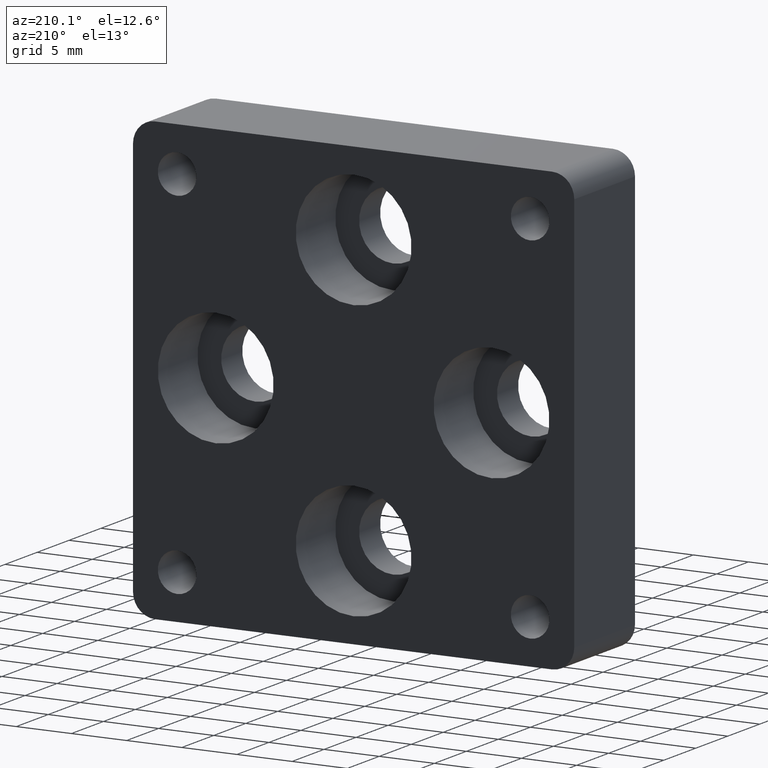
[diagram: clean part render]
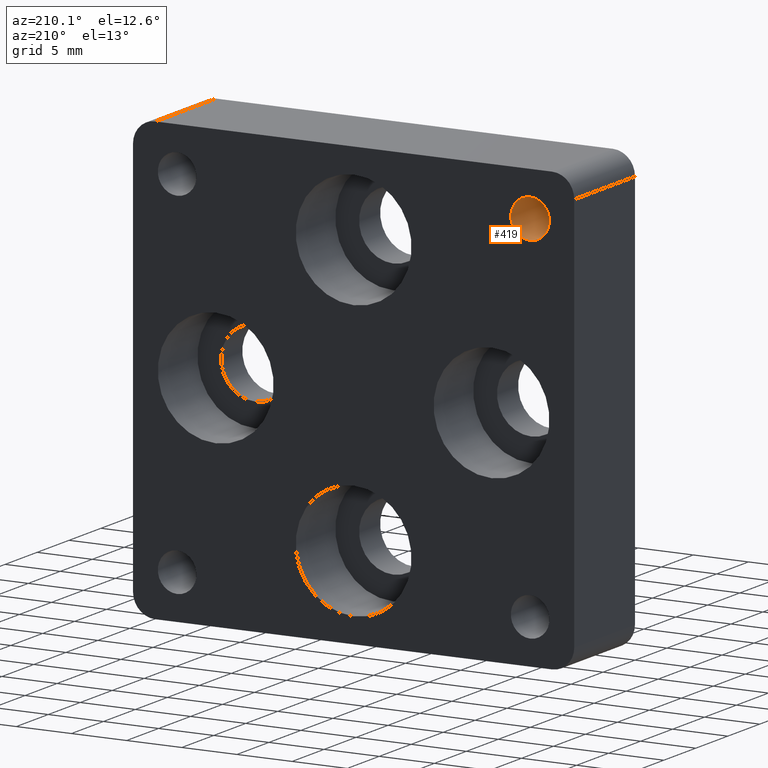
[diagram: same view with one face highlighted and labeled with its STEP entity id]
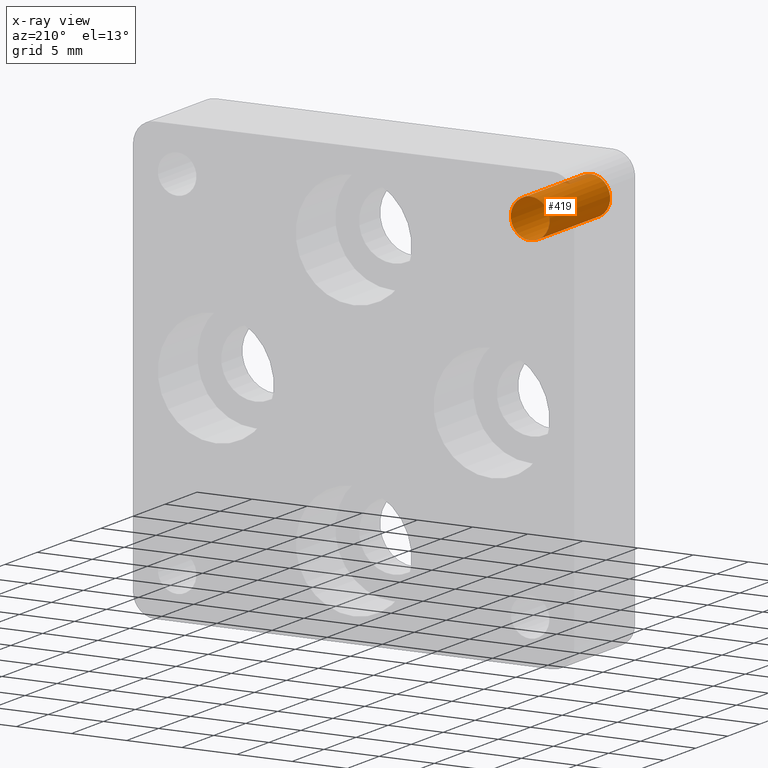
[diagram: x-ray of the same camera — body ghosted, the highlighted face saturated]
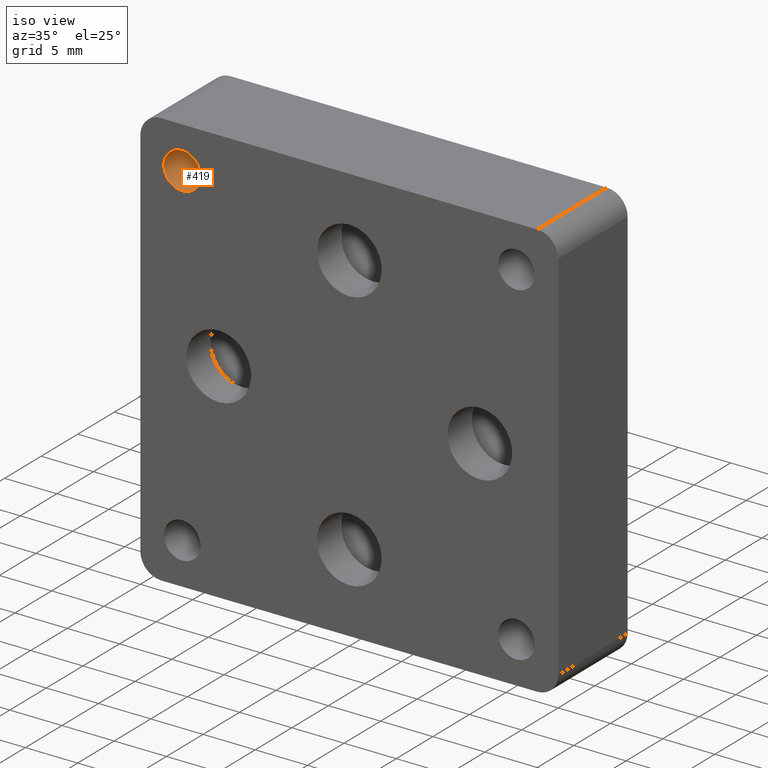
[diagram: same view with one face highlighted and labeled with its STEP entity id]
A machine part, auxiliary view. The second image highlights one B-rep face of the part: STEP entity #419.
The next image is the same camera in x-ray: the body ghosted, the highlighted face saturated — about 3% of this face is hidden behind the body in this view.
A second angle (iso view) of the same face is appended — the face is thin or edge-on in the first view.
In plain terms, the highlighted cylindrical surface (bore or boss wall) has radius 1.75 mm, axis along (-0, -1, -0).
Its self-contained STEP definition (entity closure, byte-faithful):
#57 = CARTESIAN_POINT ( 'NONE',  ( -16.00000000000000000, 9.500000000000000000, 16.00000000000000000 ) ) ;
#100 = CIRCLE ( 'NONE', #197, 1.750000000000001554 ) ;
#172 = AXIS2_PLACEMENT_3D ( 'NONE', #730, #431, #234 ) ;
#197 = AXIS2_PLACEMENT_3D ( 'NONE', #57, #623, #691 ) ;
#225 = CARTESIAN_POINT ( 'NONE',  ( -16.00000000000000000, 0.000000000000000000, 16.00000000000000000 ) ) ;
#234 = DIRECTION ( 'NONE',  ( 0.000000000000000000, 0.000000000000000000, -1.000000000000000000 ) ) ;
#292 = DIRECTION ( 'NONE',  ( 0.000000000000000000, 0.000000000000000000, 1.000000000000000000 ) ) ;
#370 = EDGE_CURVE ( 'NONE', #668, #668, #711, .T. ) ;
#419 = ADVANCED_FACE ( 'NONE', ( #740, #792 ), #471, .F. ) ;
#430 = CARTESIAN_POINT ( 'NONE',  ( -16.00000000000000000, 9.500000000000000000, 17.75000000000000355 ) ) ;
#431 = DIRECTION ( 'NONE',  ( -0.000000000000000000, -1.000000000000000000, -0.000000000000000000 ) ) ;
#467 = EDGE_CURVE ( 'NONE', #686, #686, #100, .T. ) ;
#471 = CYLINDRICAL_SURFACE ( 'NONE', #172, 1.749999999999999778 ) ;
#533 = EDGE_LOOP ( 'NONE', ( #739 ) ) ;
#608 = CARTESIAN_POINT ( 'NONE',  ( -16.00000000000000000, 0.000000000000000000, 17.75000000000000355 ) ) ;
#623 = DIRECTION ( 'NONE',  ( 0.000000000000000000, 1.000000000000000000, 0.000000000000000000 ) ) ;
#668 = VERTEX_POINT ( 'NONE', #608 ) ;
#674 = EDGE_LOOP ( 'NONE', ( #713 ) ) ;
#675 = DIRECTION ( 'NONE',  ( 0.000000000000000000, 1.000000000000000000, 0.000000000000000000 ) ) ;
#686 = VERTEX_POINT ( 'NONE', #430 ) ;
#691 = DIRECTION ( 'NONE',  ( 0.000000000000000000, 0.000000000000000000, 1.000000000000000000 ) ) ;
#701 = AXIS2_PLACEMENT_3D ( 'NONE', #225, #675, #292 ) ;
#711 = CIRCLE ( 'NONE', #701, 1.750000000000001554 ) ;
#713 = ORIENTED_EDGE ( 'NONE', *, *, #370, .F. ) ;
#730 = CARTESIAN_POINT ( 'NONE',  ( -16.00000000000000000, 9.500000000000000000, 16.00000000000000000 ) ) ;
#739 = ORIENTED_EDGE ( 'NONE', *, *, #467, .T. ) ;
#740 = FACE_OUTER_BOUND ( 'NONE', #533, .T. ) ;
#792 = FACE_OUTER_BOUND ( 'NONE', #674, .T. ) ;